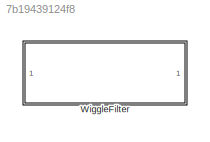
MODEL slx_7b19439124f8
KIND library
CONFIG AbsTol = auto
CONFIG EnableMultiTasking = off
CONFIG FixedStep = auto
CONFIG MaxStep = auto
CONFIG MinStep = auto
CONFIG RelTol = 1e-3
CONFIG SampleTimeConstraint = Unconstrained
CONFIG SolverName = VariableStepAuto
CONFIG StartTime = 0.0
CONFIG StopTime = 10.0
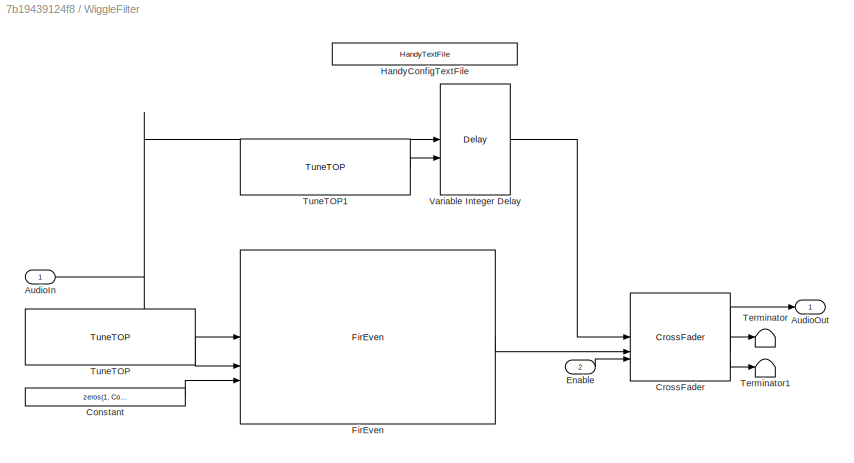
BLOCK [SubSystem] WiggleFilter
BLOCK [Inport] WiggleFilter/AudioIn
  OutDataTypeStr = single
  VarSizeSig = No
BLOCK [Outport] WiggleFilter/AudioOut
BLOCK [Constant] WiggleFilter/Constant
  OutDataTypeStr = single
  SampleTime = -1
  Value = zeros(1, Config.ChannelCount)
BLOCK [Reference] WiggleFilter/CrossFader  REF=CrossFaderLib/CrossFader
  LibrarySourceBlock = PreAmpLib/PreAmp/Subsystem
  SourceBlock = CrossFaderLib/CrossFader
  SourceType = Crossfader
BLOCK [Inport] WiggleFilter/Enable
  Port = 2
BLOCK [Reference] WiggleFilter/FirEven  REF=FirEven/FirEven
  SourceBlock = FirEven/FirEven
  SourceProductName = Bose Blocklib
BLOCK [Reference] WiggleFilter/HandyConfigTextFile  REF=HandyTextFile/HandyTextFile
  SourceBlock = HandyTextFile/HandyTextFile
  SourceProductName = Bose Talaria
  SourceType = Talaria Handy Text File
BLOCK [Terminator] WiggleFilter/Terminator
BLOCK [Terminator] WiggleFilter/Terminator1
BLOCK [Reference] WiggleFilter/TuneTOP  REF=TuneVar/TuneTOP
  SourceBlock = TuneVar/TuneTOP
  SourceProductName = Bose Talaria
  SourceType = Talaria Trivial Tune TOP
BLOCK [Reference] WiggleFilter/TuneTOP1  REF=TuneVar/TuneTOP
  SourceBlock = TuneVar/TuneTOP
  SourceProductName = Bose Talaria
  SourceType = Talaria Trivial Tune TOP
BLOCK [Delay] WiggleFilter/Variable Integer Delay
  DelayLengthSource = Input port
  InputPortMap = u0,p1
  InputProcessing = Columns as channels (frame based)
NET WiggleFilter/AudioIn:1 -> WiggleFilter/FirEven:1, WiggleFilter/Variable Integer Delay:1
LINE WiggleFilter/Constant:1 -> WiggleFilter/FirEven:3
LINE WiggleFilter/CrossFader:1 -> WiggleFilter/AudioOut:1
LINE WiggleFilter/CrossFader:2 -> WiggleFilter/Terminator:1
LINE WiggleFilter/CrossFader:3 -> WiggleFilter/Terminator1:1
LINE WiggleFilter/Enable:1 -> WiggleFilter/CrossFader:3
LINE WiggleFilter/FirEven:1 -> WiggleFilter/CrossFader:2
LINE WiggleFilter/TuneTOP1:1 -> WiggleFilter/Variable Integer Delay:2
LINE WiggleFilter/TuneTOP:1 -> WiggleFilter/FirEven:2
LINE WiggleFilter/Variable Integer Delay:1 -> WiggleFilter/CrossFader:1
note: NET lines group one-source signal fan-out (src -> all destinations, sorted); 1:1 wires keep LINE
